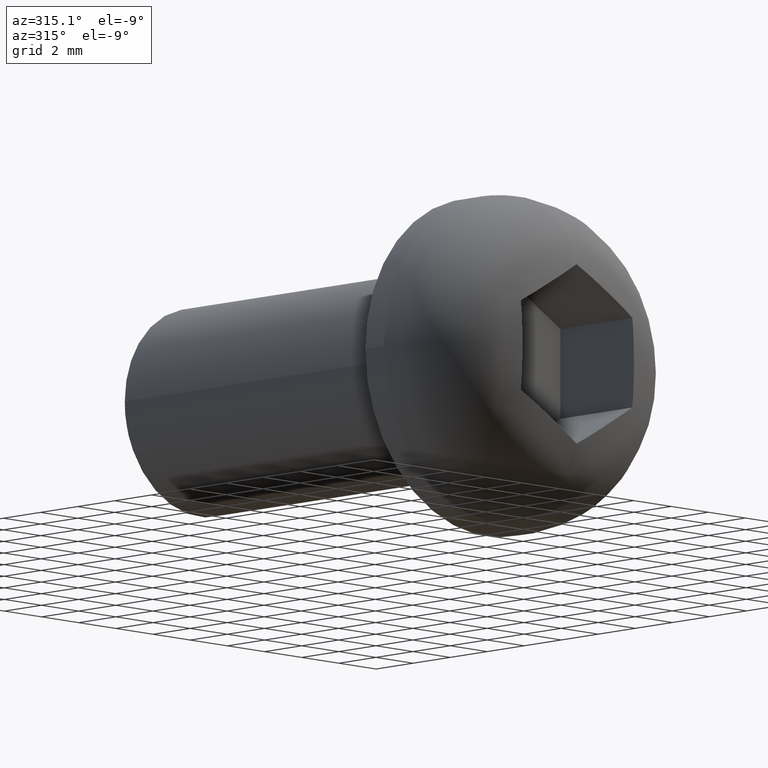
[diagram: clean part render]
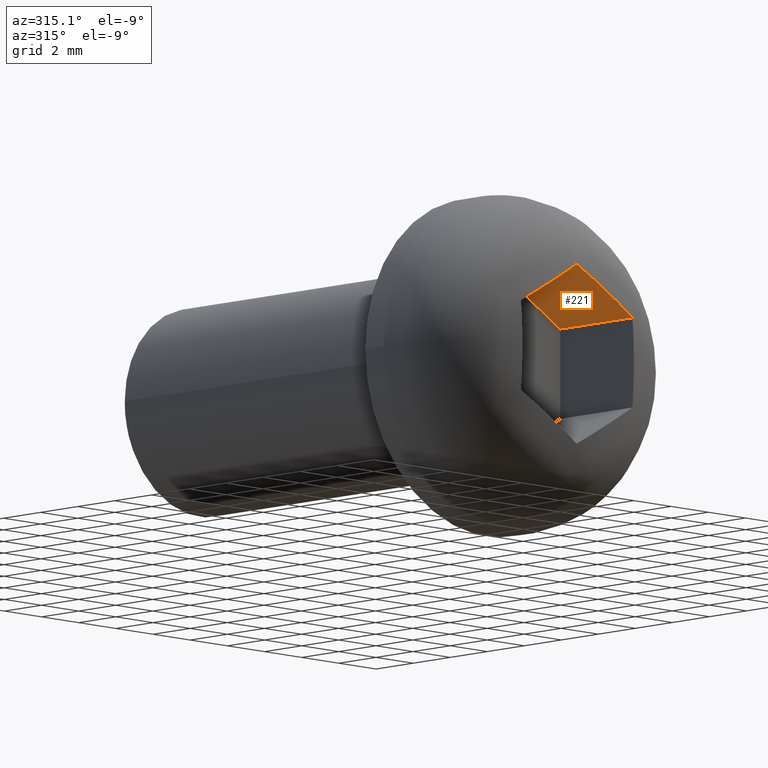
[diagram: same view with one face highlighted and labeled with its STEP entity id]
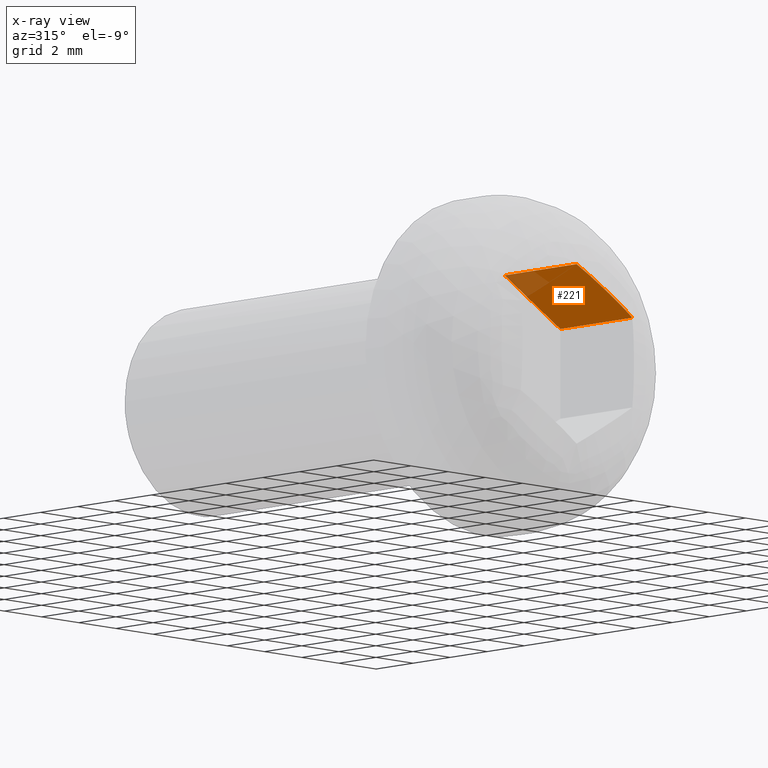
[diagram: x-ray of the same camera — body ghosted, the highlighted face saturated]
A machine part, auxiliary view. The second image highlights one B-rep face of the part: STEP entity #221.
The next image is the same camera in x-ray: the body ghosted, the highlighted face saturated — about 13% of this face is hidden behind the body in this view.
In plain terms, the highlighted planar face has unit normal (-0.5, 0, -0.866).
Its self-contained STEP definition (entity closure, byte-faithful):
#23=PLANE('',#263);
#36=LINE('',#435,#51);
#38=LINE('',#439,#53);
#39=LINE('',#440,#54);
#51=VECTOR('',#310,3.88207522797666);
#53=VECTOR('',#314,3.88207522797666);
#54=VECTOR('',#315,3.46410161513776);
#68=FACE_OUTER_BOUND('',#82,.T.);
#82=EDGE_LOOP('',(#196,#197,#198,#199));
#98=B_SPLINE_CURVE_WITH_KNOTS('',3,(#391,#392,#393,#394,#395,#396),
 .UNSPECIFIED.,.F.,.F.,(4,2,4),(1.32690657839385,1.49072927553184,1.65455197266982),
 .UNSPECIFIED.);
#105=VERTEX_POINT('',#376);
#108=VERTEX_POINT('',#390);
#118=VERTEX_POINT('',#434);
#119=VERTEX_POINT('',#438);
#128=EDGE_CURVE('',#105,#108,#98,.T.);
#145=EDGE_CURVE('',#108,#118,#36,.T.);
#147=EDGE_CURVE('',#105,#119,#38,.T.);
#148=EDGE_CURVE('',#118,#119,#39,.T.);
#196=ORIENTED_EDGE('',*,*,#145,.F.);
#197=ORIENTED_EDGE('',*,*,#128,.F.);
#198=ORIENTED_EDGE('',*,*,#147,.T.);
#199=ORIENTED_EDGE('',*,*,#148,.F.);
#221=ADVANCED_FACE('',(#68),#23,.T.);
#263=AXIS2_PLACEMENT_3D('',#437,#312,#313);
#310=DIRECTION('',(0.,1.,0.));
#312=DIRECTION('center_axis',(-0.5,0.,-0.866025403784438));
#313=DIRECTION('ref_axis',(-0.866025403784438,0.,0.5));
#314=DIRECTION('',(0.,1.,0.));
#315=DIRECTION('',(-0.866025403784438,0.,0.5));
#376=CARTESIAN_POINT('',(0.,-4.88207522795665,3.46410161513775));
#390=CARTESIAN_POINT('',(3.,-4.88207522795665,1.73205080756888));
#391=CARTESIAN_POINT('Ctrl Pts',(1.78329573330416E-14,-4.88207522795649,
3.46410161513775));
#392=CARTESIAN_POINT('Ctrl Pts',(0.508983832795468,-4.9550549531712,3.17023966226012));
#393=CARTESIAN_POINT('Ctrl Pts',(1.02708460854008,-4.9686269665757,2.87111403991662));
#394=CARTESIAN_POINT('Ctrl Pts',(1.97291539145993,-4.9686269665757,2.32503838279001));
#395=CARTESIAN_POINT('Ctrl Pts',(2.49101616720454,-4.9550549531712,2.0259127604465));
#396=CARTESIAN_POINT('Ctrl Pts',(2.99999999999998,-4.88207522795649,1.73205080756889));
#434=CARTESIAN_POINT('',(3.,-0.999999999979991,1.73205080756888));
#435=CARTESIAN_POINT('',(3.,-4.88207522795665,1.73205080756888));
#437=CARTESIAN_POINT('Origin',(3.,-4.99999999997999,1.73205080756888));
#438=CARTESIAN_POINT('',(0.,-0.999999999979991,3.46410161513775));
#439=CARTESIAN_POINT('',(0.,-4.88207522795665,3.46410161513775));
#440=CARTESIAN_POINT('',(3.,-0.999999999979991,1.73205080756888));